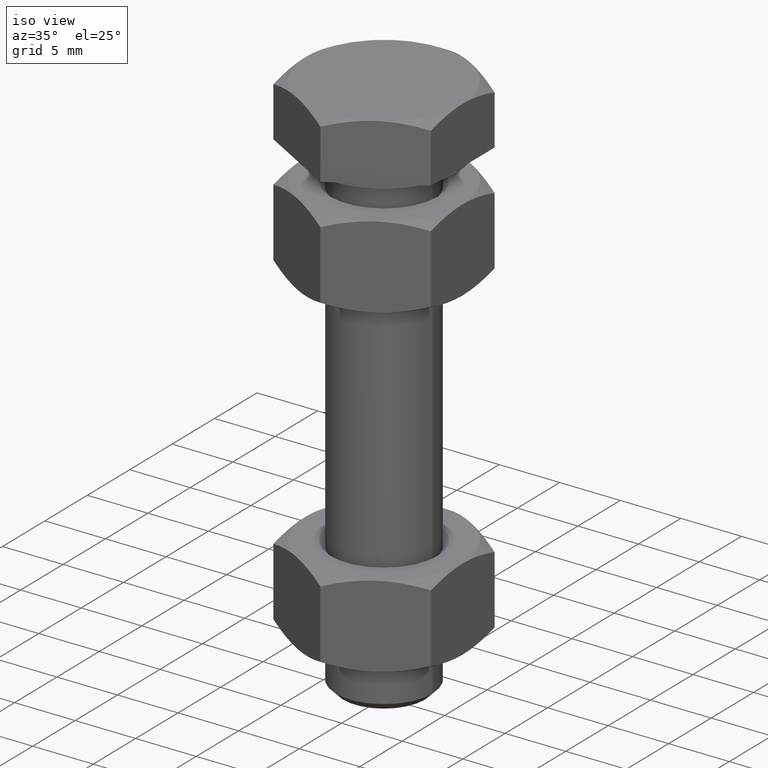
[diagram: clean part render]
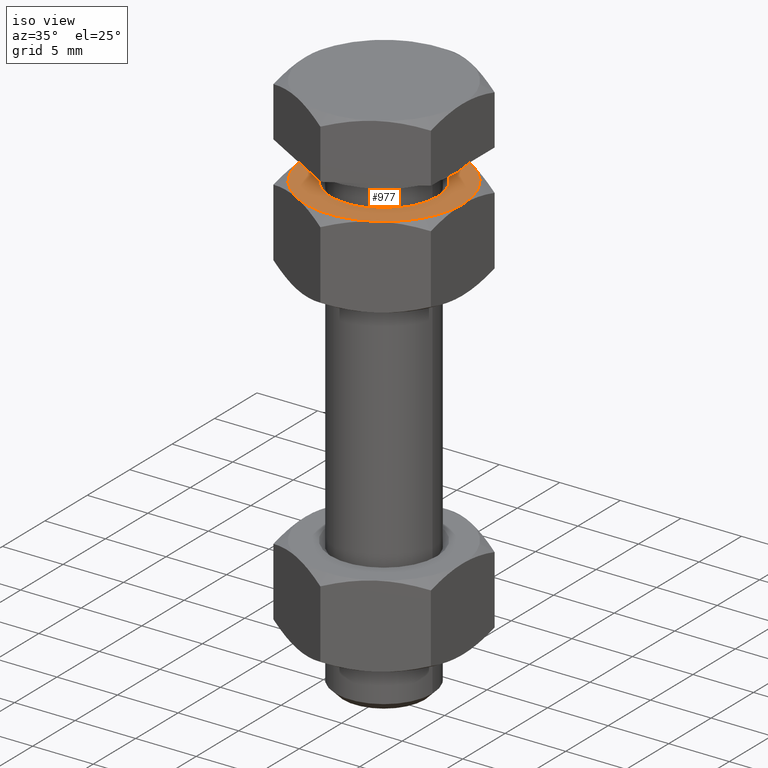
[diagram: same view with one face highlighted and labeled with its STEP entity id]
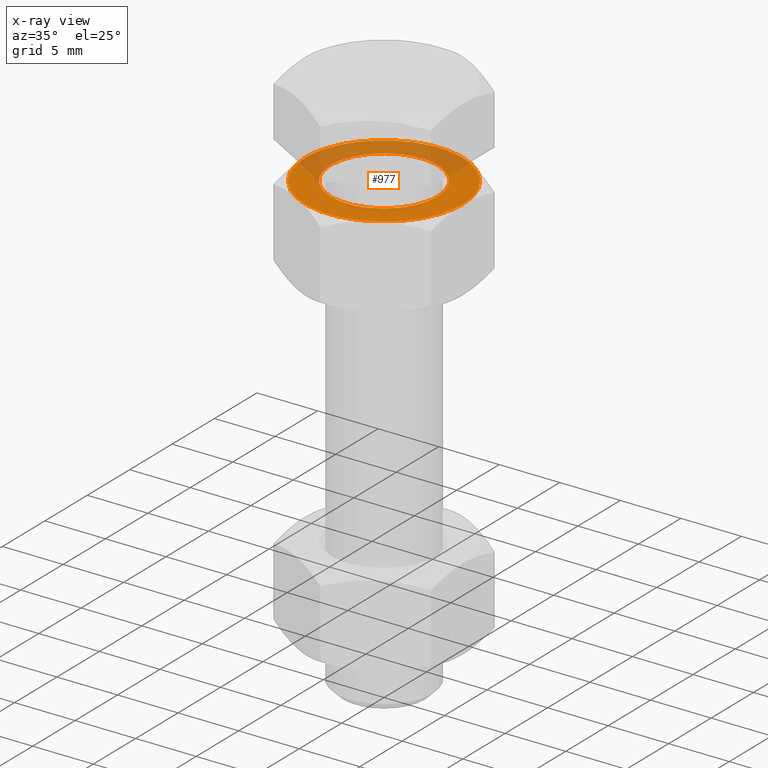
[diagram: x-ray of the same camera — body ghosted, the highlighted face saturated]
A machine part, iso view. The second image highlights one B-rep face of the part: STEP entity #977.
The next image is the same camera in x-ray: the body ghosted, the highlighted face saturated — about 39% of this face is hidden behind the body in this view.
In plain terms, the highlighted planar face has unit normal (0, 0, 1).
Its self-contained STEP definition (entity closure, byte-faithful):
#647=CARTESIAN_POINT('',(-5.629165124598845,3.250000000000004,-2.200000000000001));
#648=VERTEX_POINT('',#647);
#657=CARTESIAN_POINT('',(-3.250000000000002,5.629165124598840,-2.200000000000001));
#658=VERTEX_POINT('',#657);
#659=CARTESIAN_POINT('',(0.0,0.0,-2.200000000000001));
#660=DIRECTION('',(0.0,0.0,1.000000000000000));
#661=DIRECTION('',(-0.866025403784438,0.500000000000001,0.0));
#662=AXIS2_PLACEMENT_3D('',#659,#660,#661);
#663=CIRCLE('',#662,6.499999999999996);
#664=EDGE_CURVE('',#658,#648,#663,.T.);
#689=CARTESIAN_POINT('',(5.629165124598845,-3.250000000000003,-2.200000000000001));
#690=VERTEX_POINT('',#689);
#697=CARTESIAN_POINT('',(6.499999999999991,0.0,-2.200000000000001));
#698=VERTEX_POINT('',#697);
#712=CARTESIAN_POINT('',(0.0,0.0,-2.200000000000001));
#713=DIRECTION('',(0.0,0.0,1.000000000000000));
#714=DIRECTION('',(-0.866025403784438,0.500000000000001,0.0));
#715=AXIS2_PLACEMENT_3D('',#712,#713,#714);
#716=CIRCLE('',#715,6.499999999999996);
#717=EDGE_CURVE('',#690,#698,#716,.T.);
#845=CARTESIAN_POINT('',(4.411710000000001,3.965631E-016,-2.200000000000001));
#846=VERTEX_POINT('',#845);
#860=CARTESIAN_POINT('',(-4.411709999999999,3.965631E-016,-2.200000000000001));
#861=VERTEX_POINT('',#860);
#868=CARTESIAN_POINT('',(5.408755E-016,9.368239E-016,-2.200000000000001));
#869=DIRECTION('',(0.0,0.0,1.0));
#870=DIRECTION('',(1.0,0.0,0.0));
#871=AXIS2_PLACEMENT_3D('',#868,#869,#870);
#872=CIRCLE('',#871,4.411710000000000);
#873=EDGE_CURVE('',#861,#846,#872,.T.);
#884=CARTESIAN_POINT('',(5.408755E-016,9.368239E-016,-2.200000000000001));
#885=DIRECTION('',(0.0,0.0,1.0));
#886=DIRECTION('',(1.0,0.0,0.0));
#887=AXIS2_PLACEMENT_3D('',#884,#885,#886);
#888=CIRCLE('',#887,4.411710000000000);
#889=EDGE_CURVE('',#846,#861,#888,.T.);
#914=CARTESIAN_POINT('',(-9.006661E-015,-1.559999E-014,-2.200000000000001));
#915=DIRECTION('',(0.0,0.0,1.0));
#916=DIRECTION('',(-1.0,0.0,0.0));
#917=AXIS2_PLACEMENT_3D('',#914,#915,#916);
#918=PLANE('',#917);
#919=CARTESIAN_POINT('',(3.249999999999989,5.629165124598837,-2.200000000000000));
#920=VERTEX_POINT('',#919);
#921=CARTESIAN_POINT('',(0.0,0.0,-2.200000000000001));
#922=DIRECTION('',(0.0,0.0,1.000000000000000));
#923=DIRECTION('',(-0.866025403784438,0.500000000000001,0.0));
#924=AXIS2_PLACEMENT_3D('',#921,#922,#923);
#925=CIRCLE('',#924,6.499999999999996);
#926=EDGE_CURVE('',#920,#658,#925,.T.);
#927=ORIENTED_EDGE('',*,*,#926,.T.);
#928=ORIENTED_EDGE('',*,*,#664,.T.);
#929=CARTESIAN_POINT('',(-6.500000000000011,-8.326673E-016,-2.200000000000001));
#930=VERTEX_POINT('',#929);
#931=CARTESIAN_POINT('',(0.0,0.0,-2.200000000000001));
#932=DIRECTION('',(0.0,0.0,1.000000000000000));
#933=DIRECTION('',(-0.866025403784438,0.500000000000001,0.0));
#934=AXIS2_PLACEMENT_3D('',#931,#932,#933);
#935=CIRCLE('',#934,6.499999999999996);
#936=EDGE_CURVE('',#648,#930,#935,.T.);
#937=ORIENTED_EDGE('',*,*,#936,.T.);
#938=CARTESIAN_POINT('',(-3.250000000000005,-5.629165124598867,-2.200000000000002));
#939=VERTEX_POINT('',#938);
#940=CARTESIAN_POINT('',(0.0,0.0,-2.200000000000001));
#941=DIRECTION('',(0.0,0.0,1.000000000000000));
#942=DIRECTION('',(-0.866025403784438,0.500000000000001,0.0));
#943=AXIS2_PLACEMENT_3D('',#940,#941,#942);
#944=CIRCLE('',#943,6.499999999999996);
#945=EDGE_CURVE('',#930,#939,#944,.T.);
#946=ORIENTED_EDGE('',*,*,#945,.T.);
#947=CARTESIAN_POINT('',(3.250000000000010,-5.629165124598856,-2.200000000000001));
#948=VERTEX_POINT('',#947);
#949=CARTESIAN_POINT('',(0.0,0.0,-2.200000000000001));
#950=DIRECTION('',(0.0,0.0,1.000000000000000));
#951=DIRECTION('',(-0.866025403784438,0.500000000000001,0.0));
#952=AXIS2_PLACEMENT_3D('',#949,#950,#951);
#953=CIRCLE('',#952,6.499999999999996);
#954=EDGE_CURVE('',#939,#948,#953,.T.);
#955=ORIENTED_EDGE('',*,*,#954,.T.);
#956=CARTESIAN_POINT('',(0.0,0.0,-2.200000000000001));
#957=DIRECTION('',(0.0,0.0,1.000000000000000));
#958=DIRECTION('',(-0.866025403784438,0.500000000000001,0.0));
#959=AXIS2_PLACEMENT_3D('',#956,#957,#958);
#960=CIRCLE('',#959,6.499999999999996);
#961=EDGE_CURVE('',#948,#690,#960,.T.);
#962=ORIENTED_EDGE('',*,*,#961,.T.);
#963=ORIENTED_EDGE('',*,*,#717,.T.);
#964=CARTESIAN_POINT('',(0.0,0.0,-2.200000000000001));
#965=DIRECTION('',(0.0,0.0,1.000000000000000));
#966=DIRECTION('',(-0.866025403784438,0.500000000000001,0.0));
#967=AXIS2_PLACEMENT_3D('',#964,#965,#966);
#968=CIRCLE('',#967,6.499999999999996);
#969=EDGE_CURVE('',#698,#920,#968,.T.);
#970=ORIENTED_EDGE('',*,*,#969,.T.);
#971=EDGE_LOOP('',(#927,#928,#937,#946,#955,#962,#963,#970));
#972=FACE_OUTER_BOUND('',#971,.T.);
#973=ORIENTED_EDGE('',*,*,#873,.F.);
#974=ORIENTED_EDGE('',*,*,#889,.F.);
#975=EDGE_LOOP('',(#973,#974));
#976=FACE_BOUND('',#975,.T.);
#977=ADVANCED_FACE('',(#972,#976),#918,.T.);